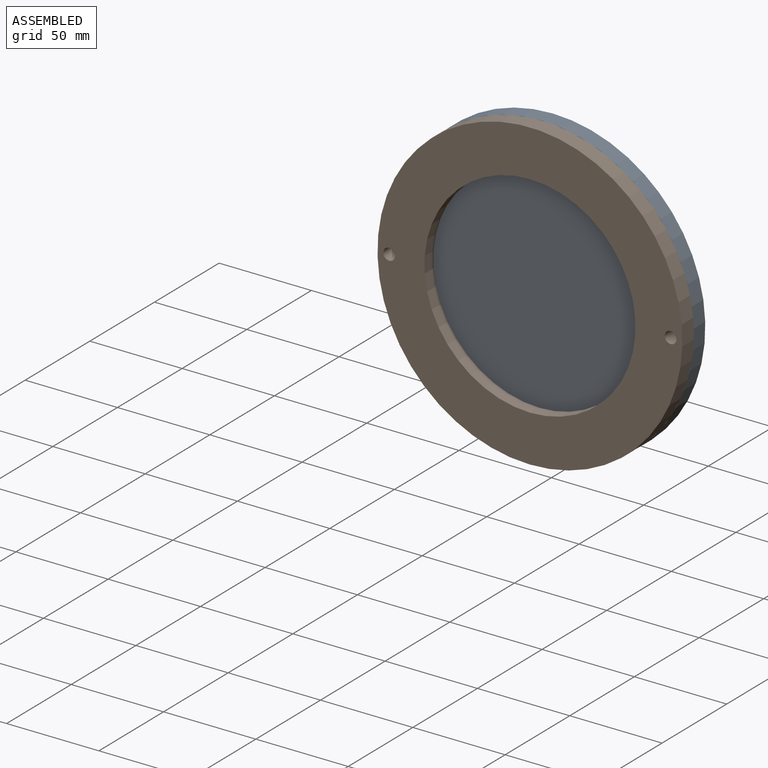
[diagram: assembled view]
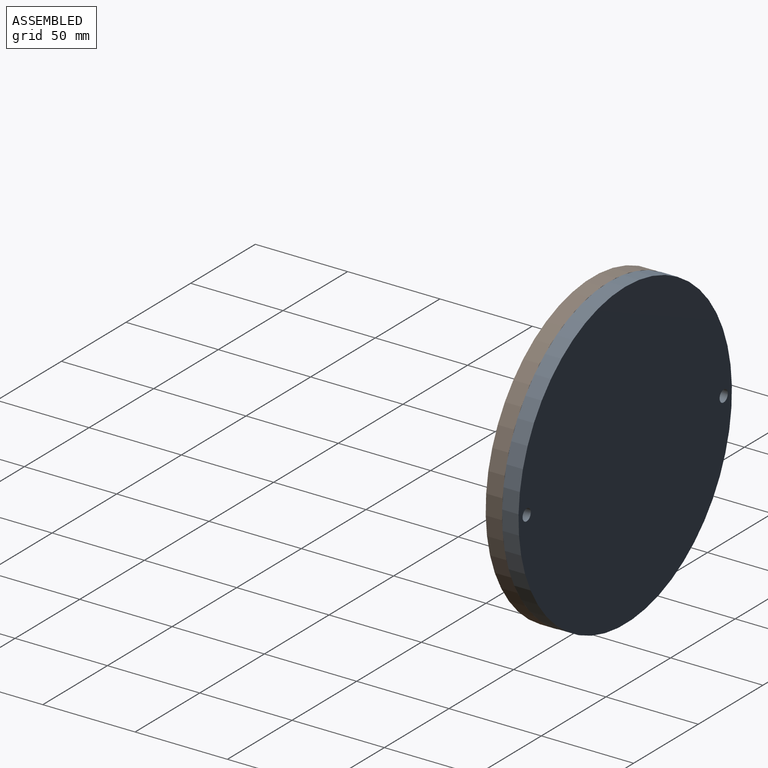
[diagram: assembled view, second angle]
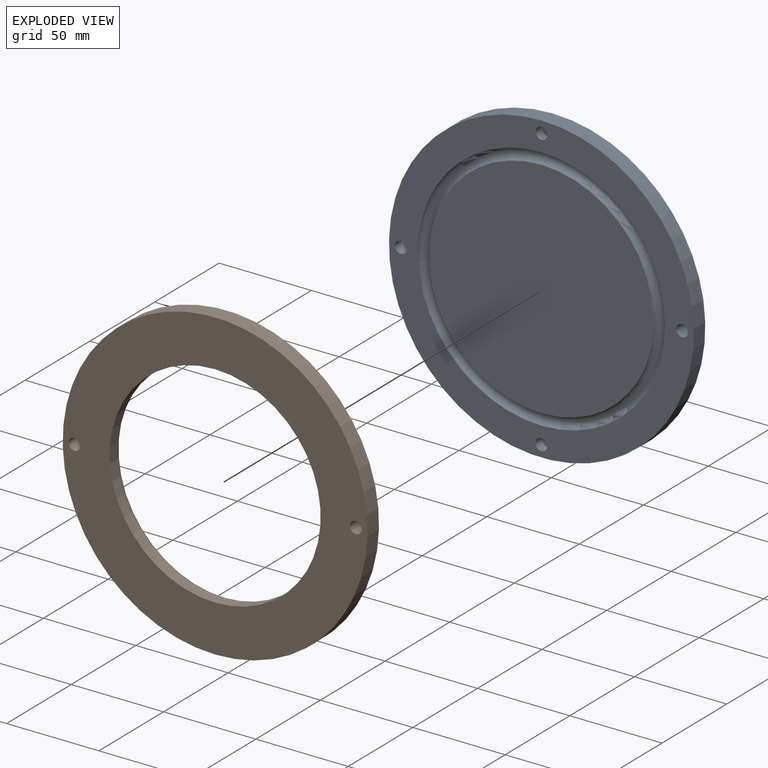
[diagram: exploded view]
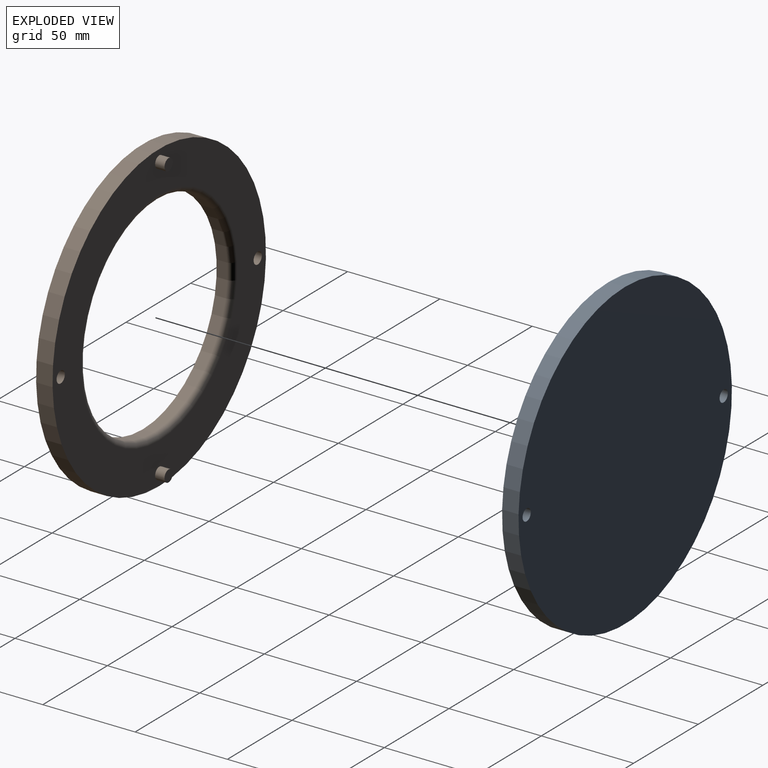
[diagram: exploded view, second angle]
ASSEMBLY  parts=2 mates=2
PART A: 11 faces, bbox 165.1x11.1x165.1 mm
  f0: plane 165.1x165.1mm, normal (0,-1,0), area 7209mm2, adj f1,f4,f5,f7,f9,f10
  f1: torus R=63.88mm, axis (0,1,0), area 3843.4mm2, adj f0,f2
  f2: plane 121.67x121.67mm, normal (0,-1,0), area 11625.9mm2, adj f1
  f3: plane 165.1x165.1mm, normal (0,1,0), area 21345.1mm2, adj f4,f9,f10
  f4: cylinder r=82.55mm len=165.1mm, axis (0,1,0), area 4611mm2, adj f0,f3
  f5: cylinder r=3.17mm len=6.35mm, axis (0,-1,0), area 101.3mm2, adj f0,f6
  f6: plane 6.35x6.35mm, normal (0,-1,0), area 31.7mm2, adj f5
  f7: cylinder r=3.17mm len=6.35mm, axis (0,-1,0), area 101.3mm2, adj f0,f8
  f8: plane 6.35x6.35mm, normal (0,-1,0), area 31.7mm2, adj f7
  f9: cylinder r=3.17mm len=8.89mm, axis (0,-1,0), area 177.3mm2, adj f0,f3
  f10: cylinder r=3.17mm len=8.89mm, axis (0,-1,0), area 177.3mm2, adj f0,f3
PART B: 11 faces, bbox 165.1x14x165.1 mm
  f0: torus R=60.2mm, axis (0,-1,0), area 1752.5mm2, adj f1,f4
  f1: plane 165.1x165.1mm, normal (0,1,0), area 9897.2mm2, adj f0,f2,f5,f7,f9,f10
  f2: cylinder r=82.55mm len=165.1mm, axis (0,-1,0), area 4611mm2, adj f1,f3
  f3: plane 165.1x165.1mm, normal (0,-1,0), area 11084.2mm2, adj f2,f4,f9,f10
  f4: cylinder r=57.15mm len=114.3mm, axis (0,-1,0), area 2097.8mm2, adj f0,f3
  f5: cylinder r=3.17mm len=6.35mm, axis (0,-1,0), area 101.3mm2, adj f1,f6
  f6: plane 6.35x6.35mm, normal (0,1,0), area 31.7mm2, adj f5
  f7: cylinder r=3.17mm len=6.35mm, axis (0,-1,0), area 101.3mm2, adj f1,f8
  f8: plane 6.35x6.35mm, normal (0,1,0), area 31.7mm2, adj f7
  f9: cylinder r=3.17mm len=8.89mm, axis (0,-1,0), area 177.3mm2, adj f1,f3
  f10: cylinder r=3.17mm len=8.89mm, axis (0,-1,0), area 177.3mm2, adj f1,f3
PLACE A t=(138.61,-82.54,-84.37)mm
PLACE B t=(138.61,-100.32,-84.37)mm
MATE parallel A.f4 <-> B.f0  axis (0,-1,0) through (138.61,-91.43,-84.37)mm
MATE parallel A.f4 <-> A.f4  axis (0,-1,0) through (138.61,-91.43,-84.37)mm
